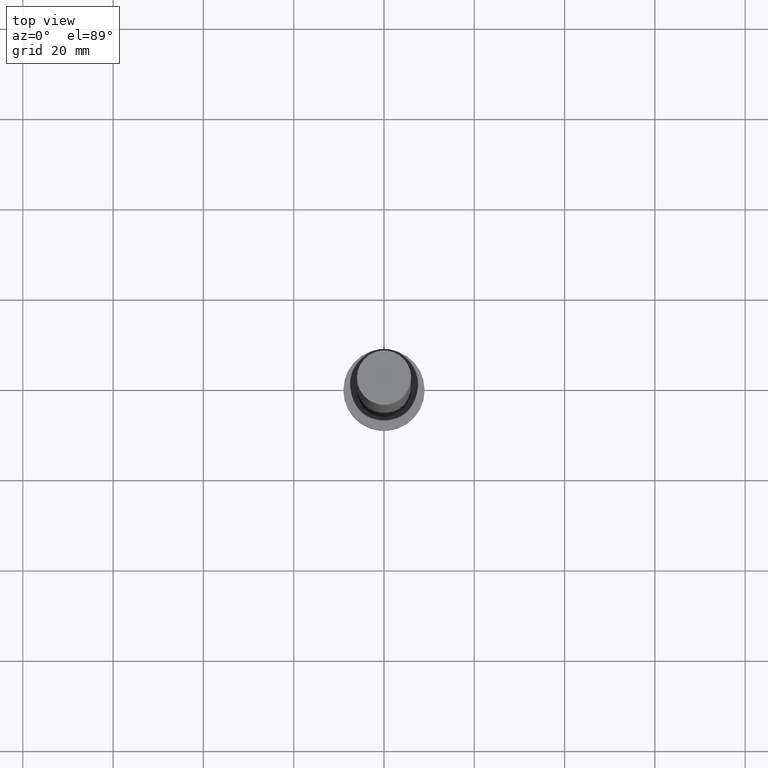
[diagram: clean part render]
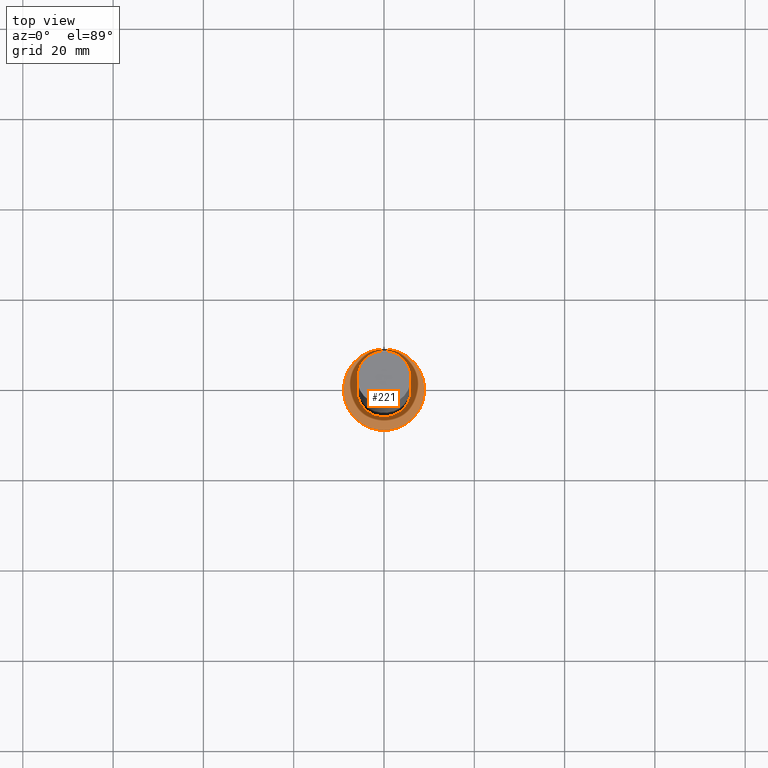
[diagram: same view with one face highlighted and labeled with its STEP entity id]
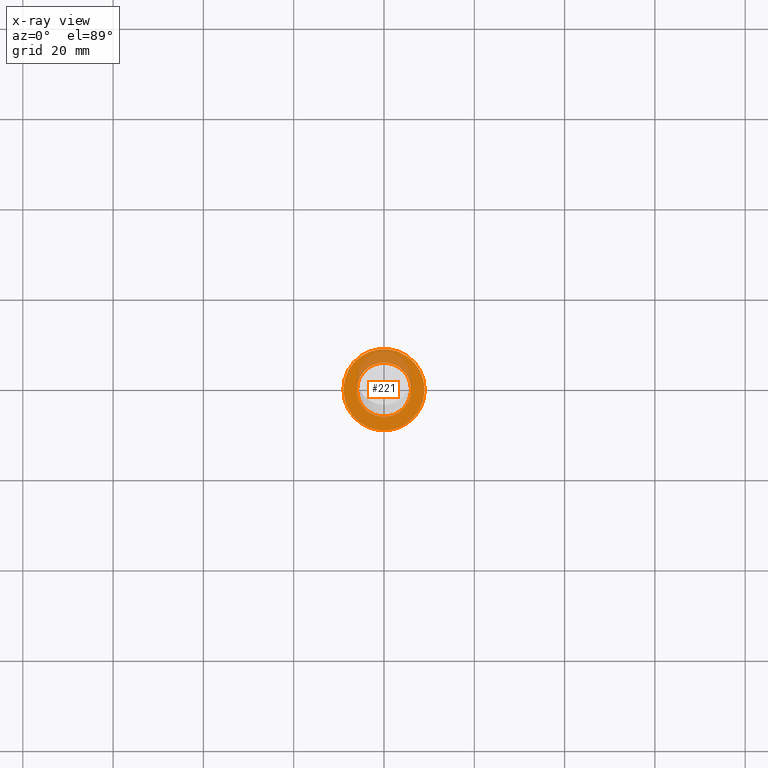
[diagram: x-ray of the same camera — body ghosted, the highlighted face saturated]
A machine part, top view. The second image highlights one B-rep face of the part: STEP entity #221.
The next image is the same camera in x-ray: the body ghosted, the highlighted face saturated — about 23% of this face is hidden behind the body in this view.
In plain terms, the highlighted planar face has unit normal (0, 0, 1).
Its self-contained STEP definition (entity closure, byte-faithful):
#8 = CARTESIAN_POINT ( 'NONE',  ( 0.000000000000000000, 0.000000000000000000, 7.000000000000000000 ) ) ;
#11 = CARTESIAN_POINT ( 'NONE',  ( 0.000000000000000000, 0.000000000000000000, 7.000000000000000000 ) ) ;
#17 = CIRCLE ( 'NONE', #38, 9.000000000000000000 ) ;
#21 = VERTEX_POINT ( 'NONE', #238 ) ;
#33 = CARTESIAN_POINT ( 'NONE',  ( -9.000000000000000000, 0.000000000000000000, 7.000000000000000000 ) ) ;
#38 = AXIS2_PLACEMENT_3D ( 'NONE', #11, #243, #107 ) ;
#43 = VERTEX_POINT ( 'NONE', #139 ) ;
#46 = CIRCLE ( 'NONE', #94, 9.000000000000000000 ) ;
#51 = PLANE ( 'NONE',  #123 ) ;
#60 = EDGE_LOOP ( 'NONE', ( #77, #80 ) ) ;
#64 = DIRECTION ( 'NONE',  ( 0.000000000000000000, 0.000000000000000000, 1.000000000000000000 ) ) ;
#66 = DIRECTION ( 'NONE',  ( 0.000000000000000000, 0.000000000000000000, 1.000000000000000000 ) ) ;
#68 = DIRECTION ( 'NONE',  ( 0.000000000000000000, 0.000000000000000000, 1.000000000000000000 ) ) ;
#69 = EDGE_CURVE ( 'NONE', #21, #239, #245, .T. ) ;
#72 = CIRCLE ( 'NONE', #104, 6.000000000000000888 ) ;
#77 = ORIENTED_EDGE ( 'NONE', *, *, #135, .F. ) ;
#80 = ORIENTED_EDGE ( 'NONE', *, *, #69, .F. ) ;
#88 = AXIS2_PLACEMENT_3D ( 'NONE', #145, #64, #111 ) ;
#94 = AXIS2_PLACEMENT_3D ( 'NONE', #125, #68, #129 ) ;
#104 = AXIS2_PLACEMENT_3D ( 'NONE', #108, #66, #246 ) ;
#107 = DIRECTION ( 'NONE',  ( 1.000000000000000000, 0.000000000000000000, 0.000000000000000000 ) ) ;
#108 = CARTESIAN_POINT ( 'NONE',  ( 0.000000000000000000, 0.000000000000000000, 7.000000000000000000 ) ) ;
#110 = FACE_OUTER_BOUND ( 'NONE', #159, .T. ) ;
#111 = DIRECTION ( 'NONE',  ( 1.000000000000000000, 0.000000000000000000, 0.000000000000000000 ) ) ;
#123 = AXIS2_PLACEMENT_3D ( 'NONE', #8, #147, #226 ) ;
#125 = CARTESIAN_POINT ( 'NONE',  ( 0.000000000000000000, 0.000000000000000000, 7.000000000000000000 ) ) ;
#129 = DIRECTION ( 'NONE',  ( 1.000000000000000000, 0.000000000000000000, 0.000000000000000000 ) ) ;
#130 = EDGE_CURVE ( 'NONE', #43, #255, #17, .T. ) ;
#135 = EDGE_CURVE ( 'NONE', #239, #21, #72, .T. ) ;
#138 = ORIENTED_EDGE ( 'NONE', *, *, #228, .T. ) ;
#139 = CARTESIAN_POINT ( 'NONE',  ( 9.000000000000000000, 1.102182119232617714E-15, 7.000000000000000000 ) ) ;
#145 = CARTESIAN_POINT ( 'NONE',  ( 0.000000000000000000, 0.000000000000000000, 7.000000000000000000 ) ) ;
#147 = DIRECTION ( 'NONE',  ( 0.000000000000000000, 0.000000000000000000, 1.000000000000000000 ) ) ;
#148 = FACE_BOUND ( 'NONE', #60, .T. ) ;
#159 = EDGE_LOOP ( 'NONE', ( #138, #161 ) ) ;
#161 = ORIENTED_EDGE ( 'NONE', *, *, #130, .T. ) ;
#221 = ADVANCED_FACE ( 'NONE', ( #148, #110 ), #51, .T. ) ;
#226 = DIRECTION ( 'NONE',  ( 1.000000000000000000, 0.000000000000000000, -0.000000000000000000 ) ) ;
#227 = CARTESIAN_POINT ( 'NONE',  ( -6.000000000000000888, 0.000000000000000000, 7.000000000000000000 ) ) ;
#228 = EDGE_CURVE ( 'NONE', #255, #43, #46, .T. ) ;
#238 = CARTESIAN_POINT ( 'NONE',  ( 6.000000000000000888, 7.347880794884120722E-16, 7.000000000000000000 ) ) ;
#239 = VERTEX_POINT ( 'NONE', #227 ) ;
#243 = DIRECTION ( 'NONE',  ( 0.000000000000000000, 0.000000000000000000, 1.000000000000000000 ) ) ;
#245 = CIRCLE ( 'NONE', #88, 6.000000000000000888 ) ;
#246 = DIRECTION ( 'NONE',  ( 1.000000000000000000, 0.000000000000000000, 0.000000000000000000 ) ) ;
#255 = VERTEX_POINT ( 'NONE', #33 ) ;